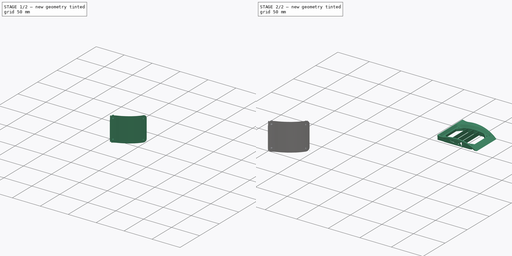
[diagram: build sequence overview — one tinted view per stage of 2, left to right]
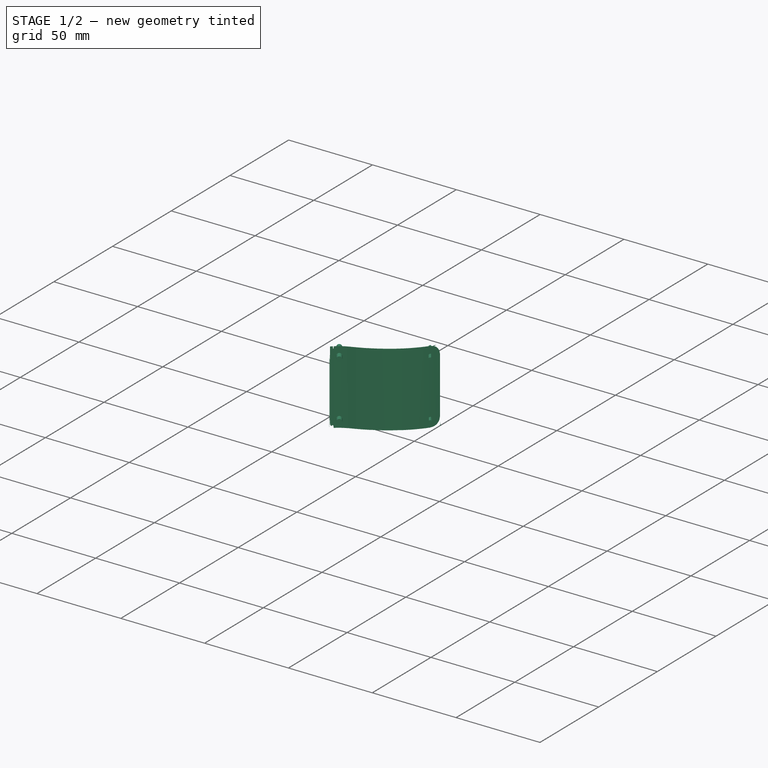
[diagram: stage 1 of 2 — iso view after this stage's code; geometry added in this stage tinted green]
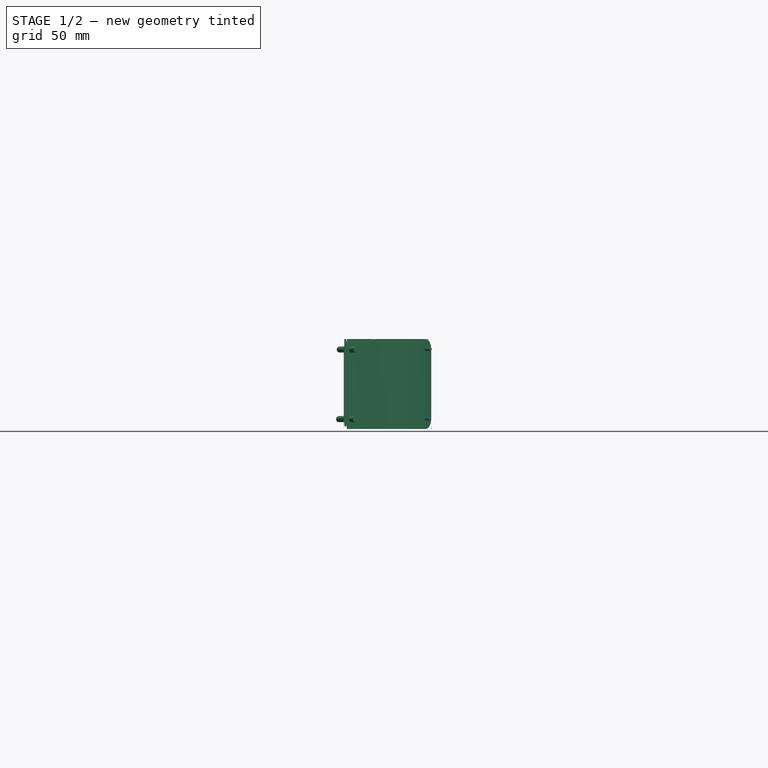
[diagram: stage 1 of 2 — front view after this stage's code; geometry added in this stage tinted green]
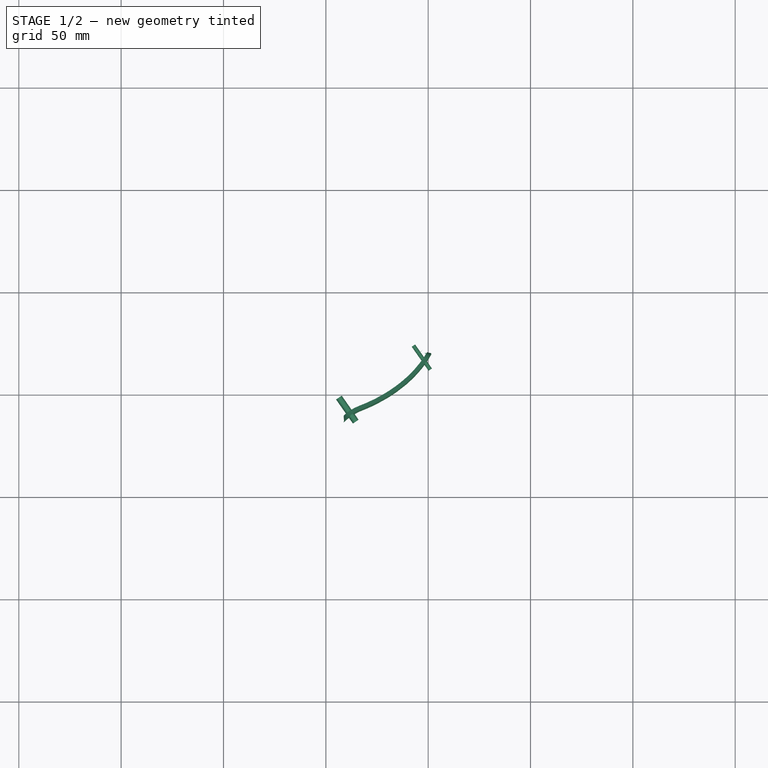
[diagram: stage 1 of 2 — top view after this stage's code; geometry added in this stage tinted green]
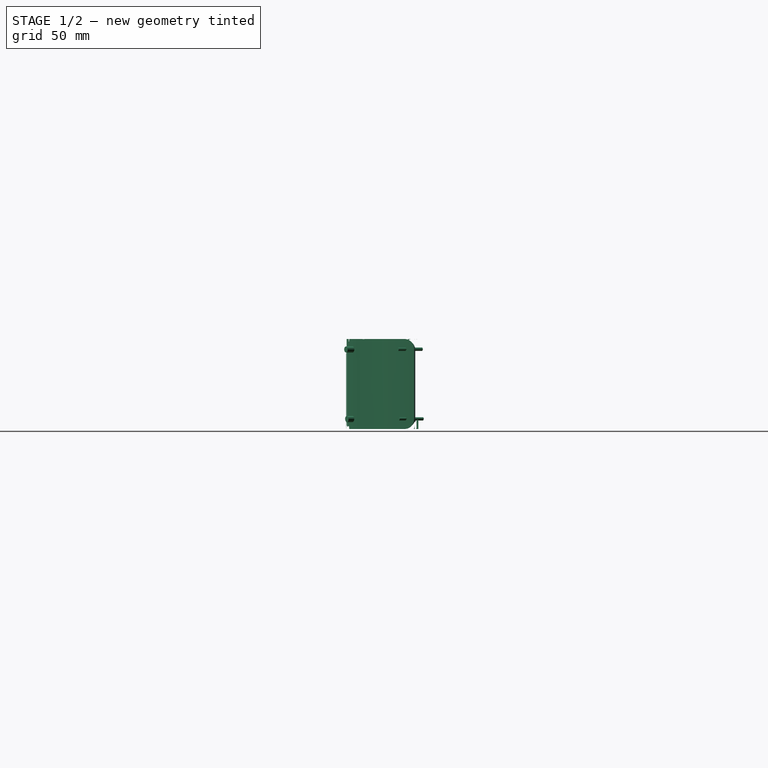
[diagram: stage 1 of 2 — right view after this stage's code; geometry added in this stage tinted green]
FCSTD DOCUMENT  (FreeCAD 0.22R38314 (Git))
Label: second filler for uke
License: All rights reserved
LicenseURL: http://en.wikipedia.org/wiki/All_rights_reserved
objects: Part::Feature×2, PartDesign::FeatureBase×2, Sketcher::SketchObject×2, PartDesign::Body×2
note: 10 computed .brp shape members not serialized (recipe doc carries the construction recipe); baked Part::Feature solids carry a one-line shape summary decoded from their .brp

FEATURE [Sketcher::SketchObject] Sketch
  AttachmentSupport = -> [XY_Plane]
  FullyConstrained = false
  MapMode = 5
  sketch-geometry (4):
    g0: LineSegment StartX=221.634 StartY=185.878 StartZ=0 EndX=221.938 EndY=151.834 EndZ=0
    g1: LineSegment StartX=221.938 StartY=151.834 StartZ=0 EndX=265.851 EndY=152.226 EndZ=0
    g2: LineSegment StartX=265.851 StartY=152.226 StartZ=0 EndX=265.547 EndY=186.27 EndZ=0
    g3: LineSegment StartX=265.547 StartY=186.27 StartZ=0 EndX=221.634 EndY=185.878 EndZ=0
  constraints (7):
    c: Coincident(g0,g1)
    c: Coincident(g1,g2)
    c: Coincident(g2,g3)
    c: Coincident(g3,g0)
    c: Perpendicular(g3,g0)
    c: Perpendicular(g1,g2)
    c: Equal(g1,g3)
FEATURE [PartDesign::Body] Body
  AllowCompound = false
  BaseFeature = -> foo002_solid
  Group = -> [BaseFeature,Sketch]
  Origin = -> Origin
  Tip = -> BaseFeature
FEATURE [PartDesign::FeatureBase] BaseFeature001
  BaseFeature = -> second_filler002_solid
  Suppressed = false
FEATURE [Sketcher::SketchObject] Sketch001
  AttachmentSupport = -> [BaseFeature001]
  ExternalGeometry = -> [BaseFeature001]
  FullyConstrained = true
  MapMode = 5
  Placement = pos=(18.9816,-27.2178,-0.493862) rot=(-0.218762,0.683692,0.69621;3.56482rad)
  sketch-geometry (1):
    g0: LineSegment StartX=-53.9901 StartY=1.62011 StartZ=0 EndX=-50.0867 EndY=1.64754 EndZ=0
  constraints (2):
    c: Coincident(g0,g-3)
    c: Coincident(g0,g-3)
FEATURE [PartDesign::Body] Body001
  AllowCompound = false
  BaseFeature = -> second_filler002_solid
  Group = -> [BaseFeature001,Sketch001]
  Origin = -> Origin001
  Tip = -> BaseFeature001
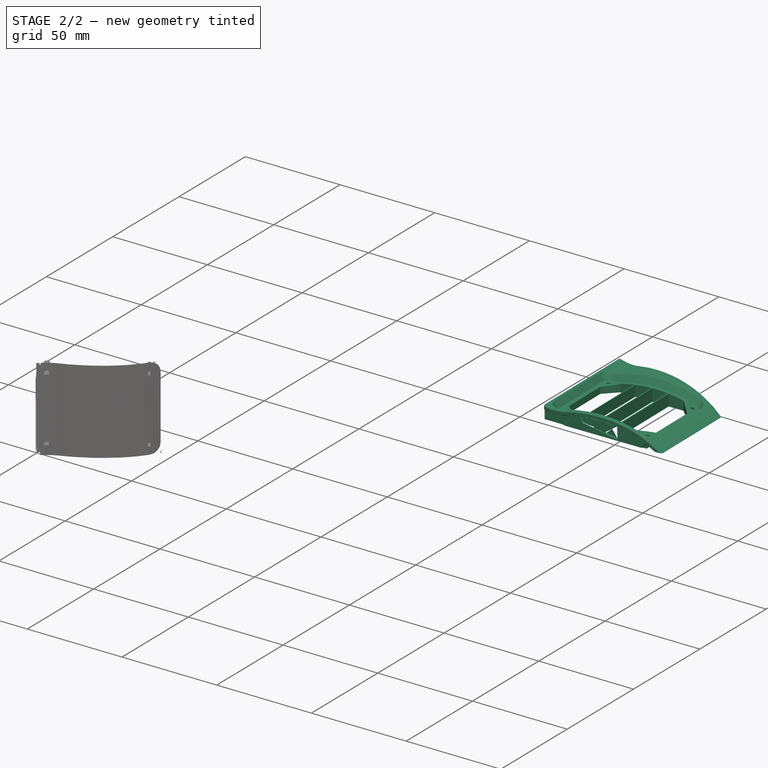
[diagram: stage 2 of 2 — iso view after this stage's code; geometry added in this stage tinted green]
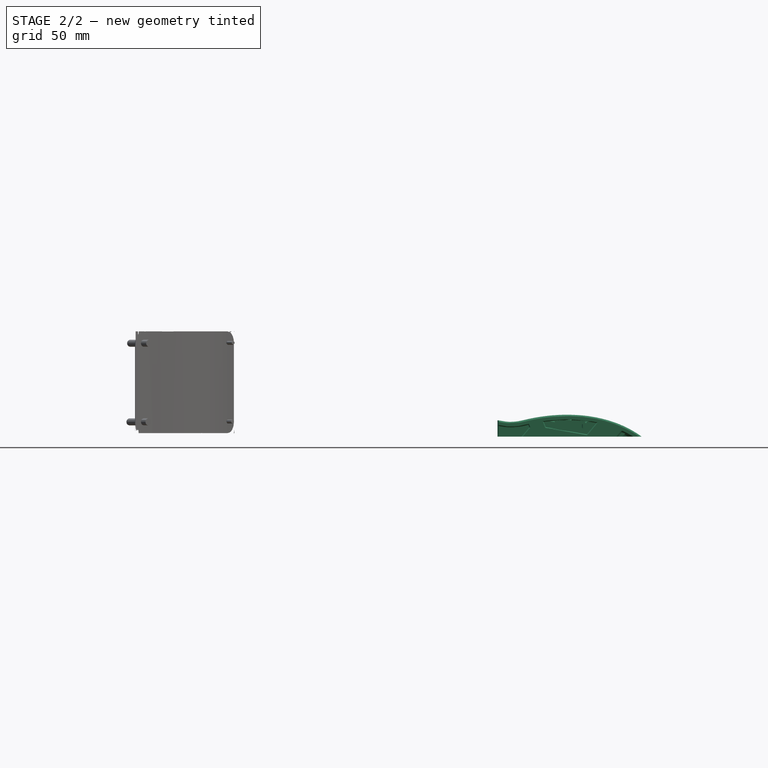
[diagram: stage 2 of 2 — front view after this stage's code; geometry added in this stage tinted green]
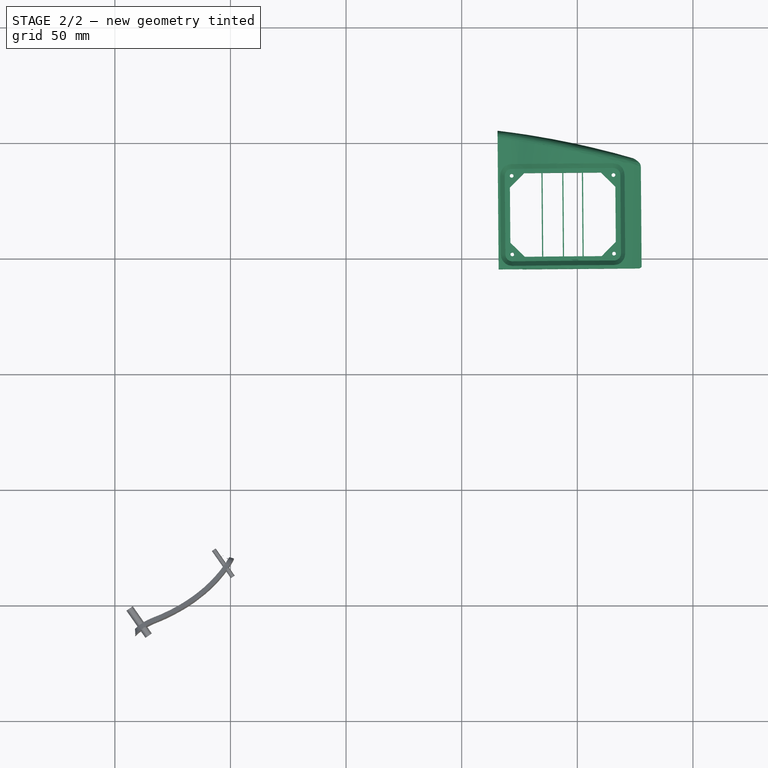
[diagram: stage 2 of 2 — top view after this stage's code; geometry added in this stage tinted green]
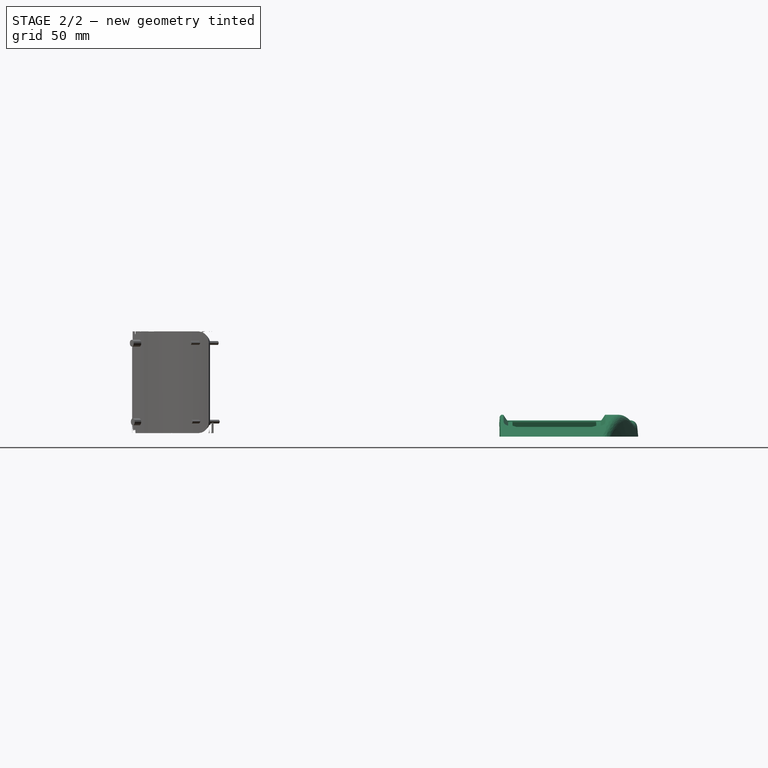
[diagram: stage 2 of 2 — right view after this stage's code; geometry added in this stage tinted green]
FEATURE [Part::Feature] second_filler002_solid  label="second_filler002 (Solid)"
  shape: bbox 46.84 x 38.92 x 44 mm, 2092 faces (baked)
FEATURE [Part::Feature] foo002_solid  label="foo002 (Solid)"
  shape: bbox 62.31 x 60.08 x 9.459 mm, 2582 faces (baked)
FEATURE [PartDesign::FeatureBase] BaseFeature
  BaseFeature = -> foo002_solid
  Suppressed = false
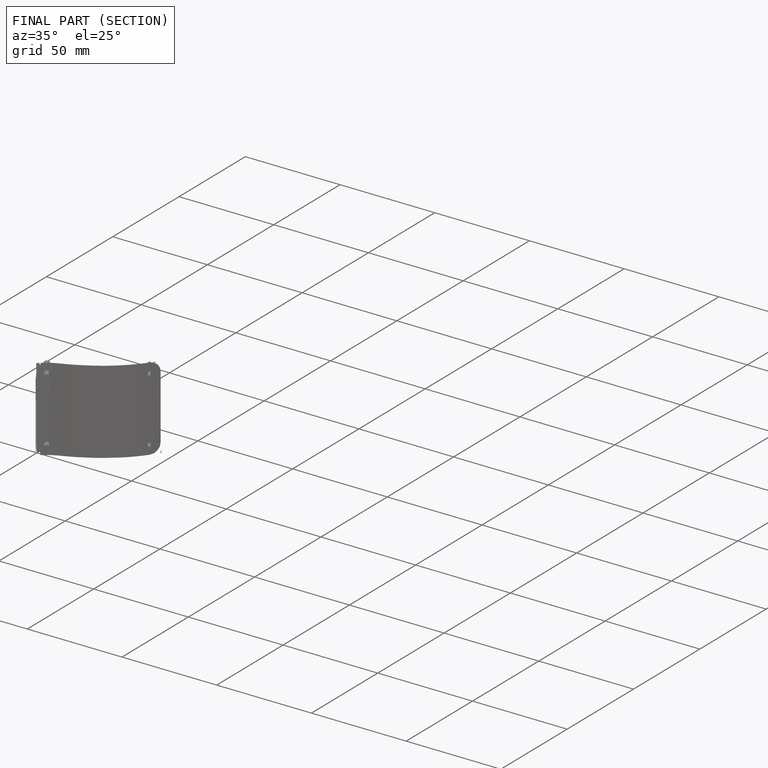
[diagram: finished part — half-section view (interior)]
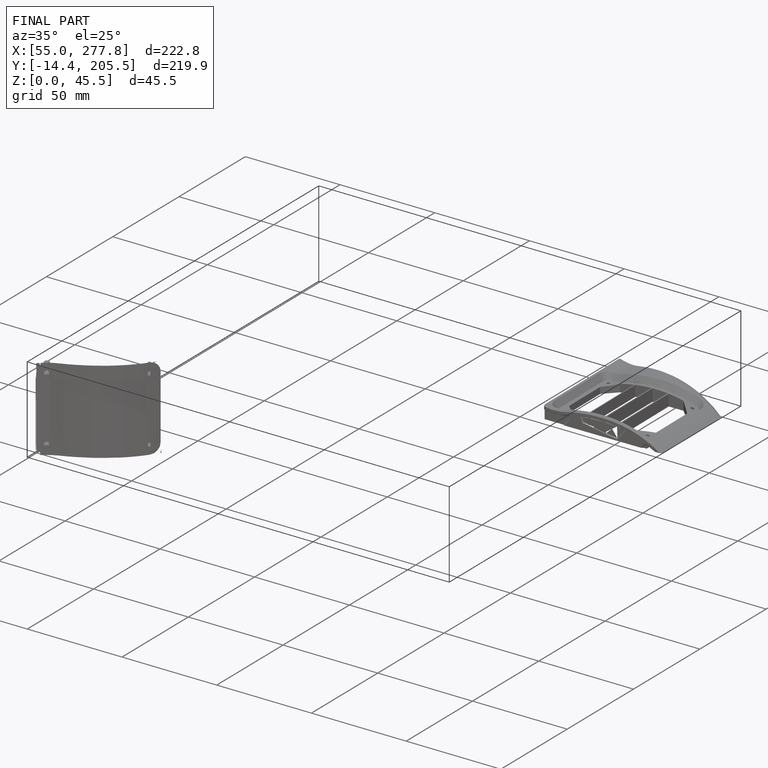
[diagram: finished part — iso view with bounding-box wireframe]
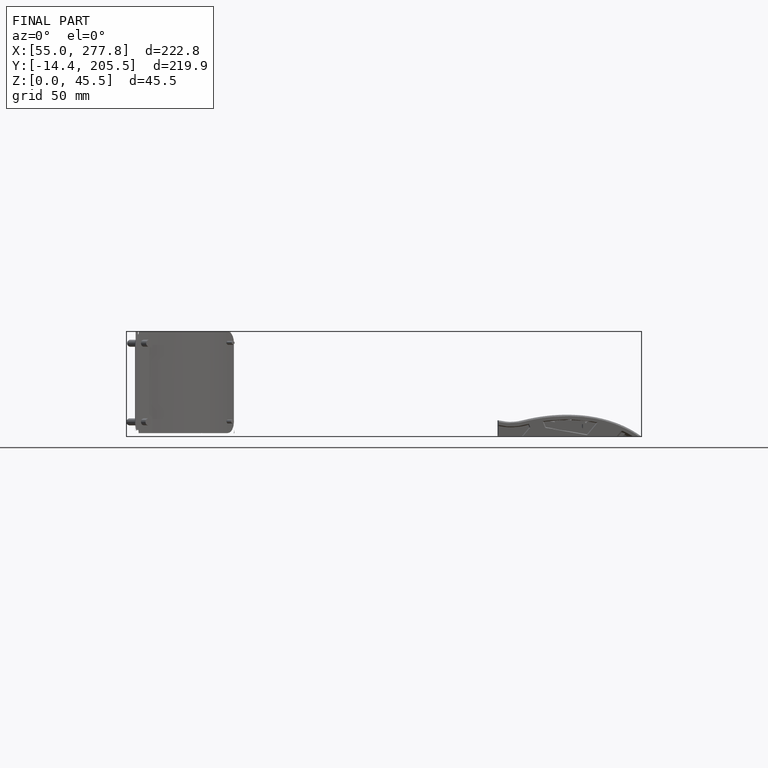
[diagram: finished part — front view with bounding-box wireframe]
